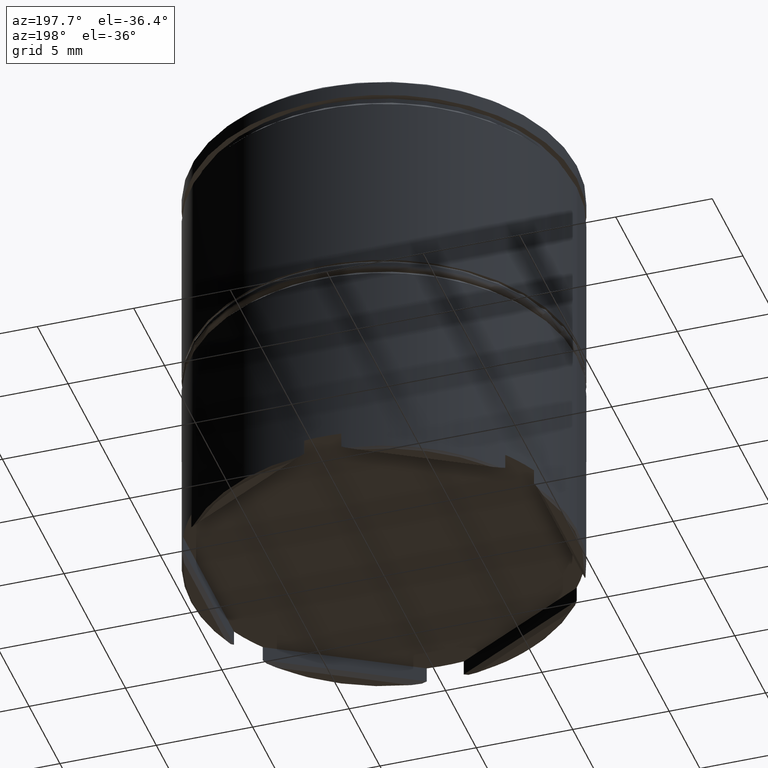
[diagram: clean part render]
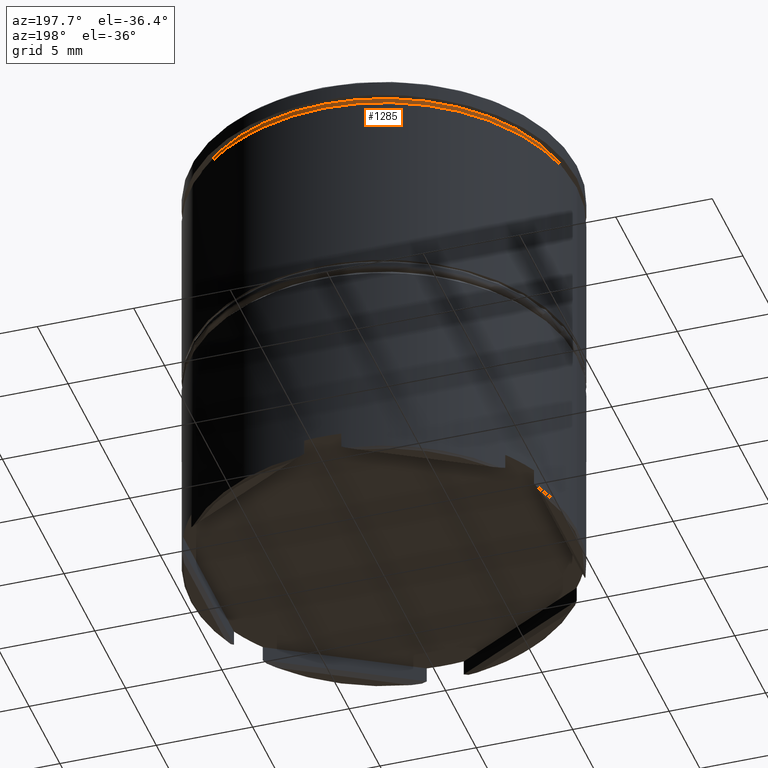
[diagram: same view with one face highlighted and labeled with its STEP entity id]
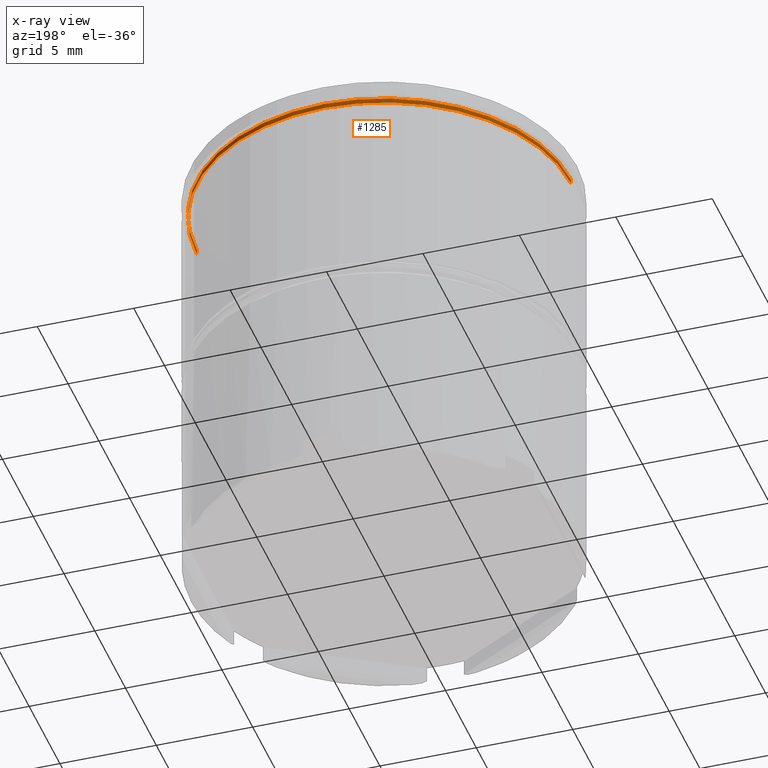
[diagram: x-ray of the same camera — body ghosted, the highlighted face saturated]
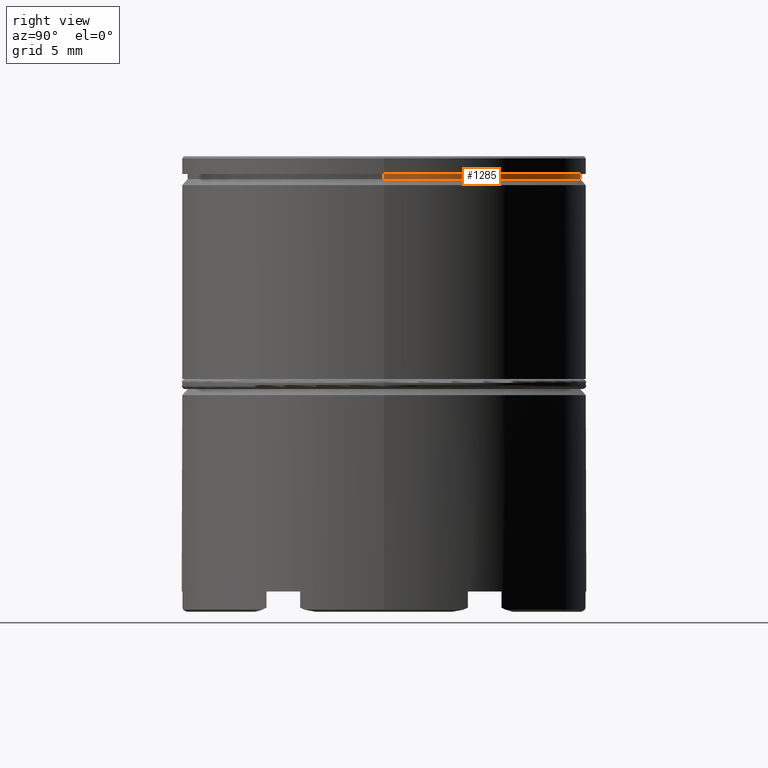
[diagram: same view with one face highlighted and labeled with its STEP entity id]
A machine part, auxiliary view. The second image highlights one B-rep face of the part: STEP entity #1285.
The next image is the same camera in x-ray: the body ghosted, the highlighted face saturated — about 2% of this face is hidden behind the body in this view.
A second angle (right view) of the same face is appended — the face is thin or edge-on in the first view.
In plain terms, the highlighted cylindrical surface (partial cylindrical patch) has radius 9.7 mm, axis along (-0, -0, 1).
Its self-contained STEP definition (entity closure, byte-faithful):
#51 = CIRCLE ( 'NONE', #985, 9.700000000000001066 ) ;
#192 = ORIENTED_EDGE ( 'NONE', *, *, #1468, .T. ) ;
#203 = CARTESIAN_POINT ( 'NONE',  ( 9.700000000000001066, 0.000000000000000000, -1.125000000000000222 ) ) ;
#218 = CYLINDRICAL_SURFACE ( 'NONE', #1583, 9.700000000000001066 ) ;
#292 = ORIENTED_EDGE ( 'NONE', *, *, #801, .T. ) ;
#293 = DIRECTION ( 'NONE',  ( 1.000000000000000000, 0.000000000000000000, 0.000000000000000000 ) ) ;
#338 = FACE_OUTER_BOUND ( 'NONE', #1629, .T. ) ;
#381 = CARTESIAN_POINT ( 'NONE',  ( -9.700000000000001066, 1.187907395172932594E-15, -1.125000000000000222 ) ) ;
#409 = CARTESIAN_POINT ( 'NONE',  ( -9.700000000000001066, 1.187907395172932594E-15, 0.000000000000000000 ) ) ;
#437 = VECTOR ( 'NONE', #1315, 1000.000000000000000 ) ;
#546 = CIRCLE ( 'NONE', #1477, 9.700000000000001066 ) ;
#578 = VERTEX_POINT ( 'NONE', #580 ) ;
#580 = CARTESIAN_POINT ( 'NONE',  ( 9.700000000000001066, 0.000000000000000000, -0.8749999999999998890 ) ) ;
#605 = CARTESIAN_POINT ( 'NONE',  ( 0.000000000000000000, 0.000000000000000000, 0.000000000000000000 ) ) ;
#634 = EDGE_CURVE ( 'NONE', #1302, #578, #1181, .T. ) ;
#691 = DIRECTION ( 'NONE',  ( -0.000000000000000000, -0.000000000000000000, 1.000000000000000000 ) ) ;
#741 = VERTEX_POINT ( 'NONE', #1142 ) ;
#790 = DIRECTION ( 'NONE',  ( -0.000000000000000000, -0.000000000000000000, 1.000000000000000000 ) ) ;
#799 = CARTESIAN_POINT ( 'NONE',  ( 9.700000000000001066, 0.000000000000000000, 0.000000000000000000 ) ) ;
#801 = EDGE_CURVE ( 'NONE', #1493, #741, #930, .T. ) ;
#812 = VECTOR ( 'NONE', #790, 1000.000000000000000 ) ;
#930 = LINE ( 'NONE', #409, #812 ) ;
#957 = CARTESIAN_POINT ( 'NONE',  ( 0.000000000000000000, 0.000000000000000000, -1.125000000000000222 ) ) ;
#963 = DIRECTION ( 'NONE',  ( 1.000000000000000000, 0.000000000000000000, 0.000000000000000000 ) ) ;
#985 = AXIS2_PLACEMENT_3D ( 'NONE', #1289, #1052, #1146 ) ;
#1052 = DIRECTION ( 'NONE',  ( -0.000000000000000000, -0.000000000000000000, 1.000000000000000000 ) ) ;
#1102 = ORIENTED_EDGE ( 'NONE', *, *, #1495, .F. ) ;
#1142 = CARTESIAN_POINT ( 'NONE',  ( -9.700000000000001066, 1.187907395172932594E-15, -0.8749999999999998890 ) ) ;
#1146 = DIRECTION ( 'NONE',  ( 1.000000000000000000, 0.000000000000000000, 0.000000000000000000 ) ) ;
#1181 = LINE ( 'NONE', #799, #437 ) ;
#1285 = ADVANCED_FACE ( 'NONE', ( #338 ), #218, .T. ) ;
#1289 = CARTESIAN_POINT ( 'NONE',  ( 0.000000000000000000, 0.000000000000000000, -0.8749999999999998890 ) ) ;
#1302 = VERTEX_POINT ( 'NONE', #203 ) ;
#1315 = DIRECTION ( 'NONE',  ( -0.000000000000000000, -0.000000000000000000, 1.000000000000000000 ) ) ;
#1327 = DIRECTION ( 'NONE',  ( -0.000000000000000000, -0.000000000000000000, 1.000000000000000000 ) ) ;
#1468 = EDGE_CURVE ( 'NONE', #1302, #1493, #546, .T. ) ;
#1477 = AXIS2_PLACEMENT_3D ( 'NONE', #957, #1327, #293 ) ;
#1493 = VERTEX_POINT ( 'NONE', #381 ) ;
#1495 = EDGE_CURVE ( 'NONE', #578, #741, #51, .T. ) ;
#1583 = AXIS2_PLACEMENT_3D ( 'NONE', #605, #691, #963 ) ;
#1589 = ORIENTED_EDGE ( 'NONE', *, *, #634, .F. ) ;
#1629 = EDGE_LOOP ( 'NONE', ( #192, #292, #1102, #1589 ) ) ;